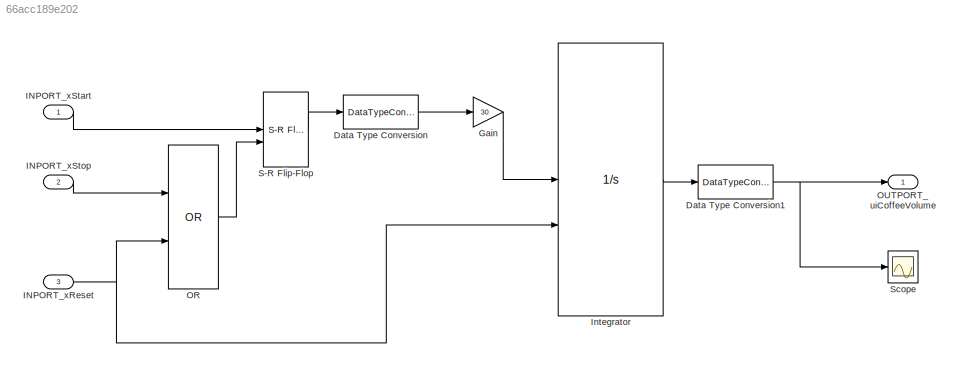
MODEL slx_66acc189e202
KIND model
CONFIG AbsTol = auto
CONFIG EnableMultiTasking = off
CONFIG FixedStep = 0.1
CONFIG MaxStep = auto
CONFIG MinStep = auto
CONFIG RelTol = 1e-3
CONFIG SampleTimeConstraint = Unconstrained
CONFIG SolverName = FixedStepAuto
CONFIG StartTime = 0.0
CONFIG StopTime = 10.0
BLOCK [DataTypeConversion] Data Type Conversion
  OutDataTypeStr = double
  RndMeth = Floor
  SaturateOnIntegerOverflow = off
BLOCK [DataTypeConversion] Data Type Conversion1
  OutDataTypeStr = uint16
  RndMeth = Floor
  SaturateOnIntegerOverflow = off
BLOCK [Gain] Gain
  Gain = 30
BLOCK [Inport] INPORT_xReset
  OutDataTypeStr = boolean
  Port = 3
BLOCK [Inport] INPORT_xStart
  OutDataTypeStr = boolean
BLOCK [Inport] INPORT_xStop
  OutDataTypeStr = boolean
  Port = 2
BLOCK [Integrator] Integrator
  ExternalReset = rising
BLOCK [Logic] OR
  AllPortsSameDT = off
  IconShape = distinctive
  Operator = OR
  OutDataTypeStr = boolean
BLOCK [Outport] OUTPORT_uiCoffeeVolume
  OutDataTypeStr = uint16
BLOCK [Reference] S-R Flip-Flop  REF=simulink_extras/Flip Flops/S-R
Flip-Flop
  SourceBlock = simulink_extras/Flip Flops/S-R\nFlip-Flop
  SourceType = SRFlipFlop
BLOCK [Scope] Scope
  Floating = off
  NumInputPorts = 1
  ScopeSpecificationString = Simulink.scopes.TimeScopeBlockCfg('CurrentConfiguration', extmgr.ConfigurationSet(extmgr.Configuration('Core','General UI',true),extmgr.Configuration('Core','Source UI',true),extmgr.Configuration('Sources','WiredSimulink',true),extmgr.Configuration('Visuals','Time Domain',true),extmgr.Configuration('Tools','Plot Navigation',true),extmgr.Configuration('Tools','Measurements',true)),'Version','2024b'...<+1ch>
NET Data Type Conversion1:1 -> OUTPORT_uiCoffeeVolume:1, Scope:1
LINE Data Type Conversion:1 -> Gain:1
LINE Gain:1 -> Integrator:1
NET INPORT_xReset:1 -> Integrator:2, OR:2
LINE INPORT_xStart:1 -> S-R Flip-Flop:1
LINE INPORT_xStop:1 -> OR:1
LINE Integrator:1 -> Data Type Conversion1:1
LINE OR:1 -> S-R Flip-Flop:2
LINE S-R Flip-Flop:1 -> Data Type Conversion:1
note: NET lines group one-source signal fan-out (src -> all destinations, sorted); 1:1 wires keep LINE
